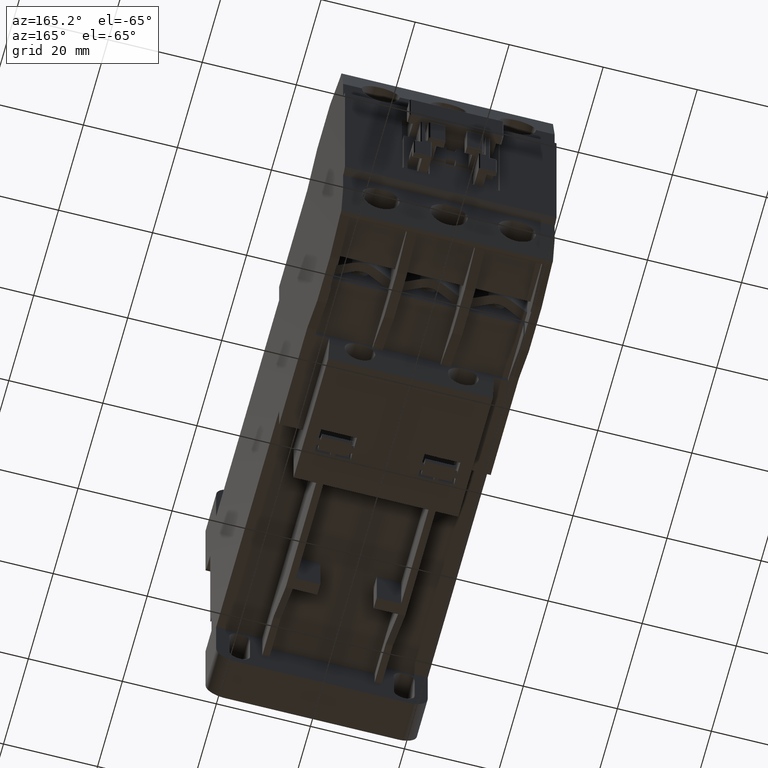
[diagram: clean part render]
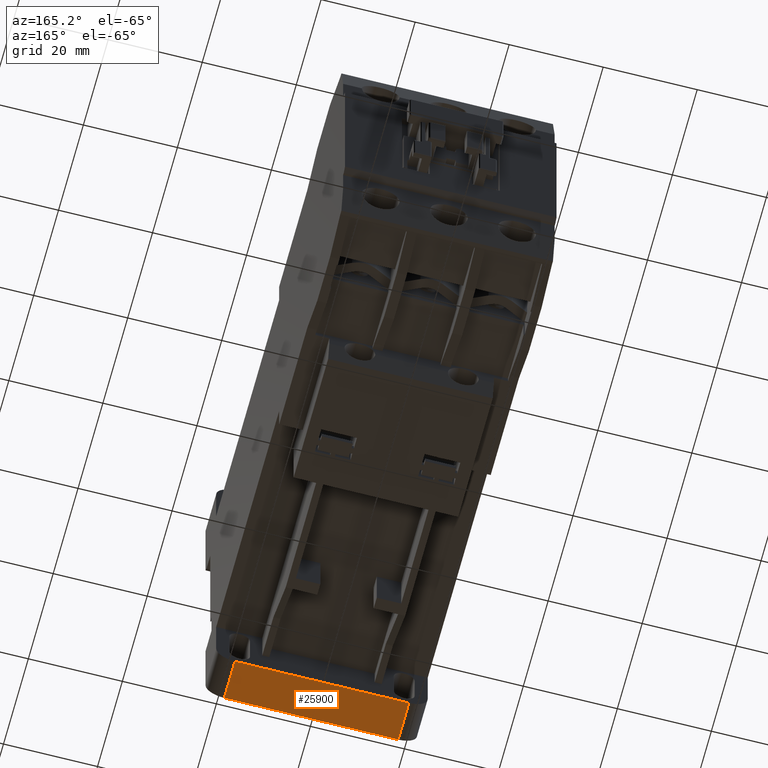
[diagram: same view with one face highlighted and labeled with its STEP entity id]
A machine part, auxiliary view. The second image highlights one B-rep face of the part: STEP entity #25900.
In plain terms, the highlighted planar face has unit normal (0, 0, -1).
Its self-contained STEP definition (entity closure, byte-faithful):
#37 = EDGE_CURVE ( 'NONE', #1266, #16179, #17452, .T. ) ;
#1137 = VERTEX_POINT ( 'NONE', #9874 ) ;
#1266 = VERTEX_POINT ( 'NONE', #24289 ) ;
#3537 = DIRECTION ( 'NONE',  ( 1.000000000000000000, 0.000000000000000000, 0.000000000000000000 ) ) ;
#4366 = VERTEX_POINT ( 'NONE', #32914 ) ;
#5297 = ORIENTED_EDGE ( 'NONE', *, *, #24615, .T. ) ;
#5742 = LINE ( 'NONE', #9022, #33638 ) ;
#8783 = VECTOR ( 'NONE', #10876, 39.37007874015748143 ) ;
#9022 = CARTESIAN_POINT ( 'NONE',  ( 0.7283464566929134243, -3.122047244094487972, -1.633858267716535639 ) ) ;
#9874 = CARTESIAN_POINT ( 'NONE',  ( -0.7283464566929134243, -3.122047244094487972, -1.633858267716535639 ) ) ;
#10797 = EDGE_LOOP ( 'NONE', ( #14265, #16472, #16333, #5297 ) ) ;
#10876 = DIRECTION ( 'NONE',  ( 0.000000000000000000, 1.000000000000000000, 0.000000000000000000 ) ) ;
#12020 = PLANE ( 'NONE',  #20422 ) ;
#12255 = CARTESIAN_POINT ( 'NONE',  ( 0.7283464566929134243, -2.783464566929133799, -1.633858267716535639 ) ) ;
#14265 = ORIENTED_EDGE ( 'NONE', *, *, #14660, .F. ) ;
#14660 = EDGE_CURVE ( 'NONE', #1137, #4366, #28438, .T. ) ;
#16179 = VERTEX_POINT ( 'NONE', #12255 ) ;
#16333 = ORIENTED_EDGE ( 'NONE', *, *, #37, .T. ) ;
#16472 = ORIENTED_EDGE ( 'NONE', *, *, #24131, .T. ) ;
#17151 = DIRECTION ( 'NONE',  ( 0.000000000000000000, -1.000000000000000000, 0.000000000000000000 ) ) ;
#17177 = VECTOR ( 'NONE', #19997, 39.37007874015748143 ) ;
#17452 = LINE ( 'NONE', #34237, #28428 ) ;
#19590 = DIRECTION ( 'NONE',  ( 0.000000000000000000, -1.000000000000000000, 0.000000000000000000 ) ) ;
#19997 = DIRECTION ( 'NONE',  ( 1.000000000000000000, 0.000000000000000000, 0.000000000000000000 ) ) ;
#20422 = AXIS2_PLACEMENT_3D ( 'NONE', #33316, #33857, #19590 ) ;
#22304 = FACE_OUTER_BOUND ( 'NONE', #10797, .T. ) ;
#24131 = EDGE_CURVE ( 'NONE', #1137, #1266, #29638, .T. ) ;
#24289 = CARTESIAN_POINT ( 'NONE',  ( -0.7283464566929134243, -2.783464566929133799, -1.633858267716535639 ) ) ;
#24586 = CARTESIAN_POINT ( 'NONE',  ( -0.7283464566929134243, -2.783464566929133799, -1.633858267716535639 ) ) ;
#24615 = EDGE_CURVE ( 'NONE', #16179, #4366, #5742, .T. ) ;
#25900 = ADVANCED_FACE ( 'NONE', ( #22304 ), #12020, .T. ) ;
#28428 = VECTOR ( 'NONE', #3537, 39.37007874015748143 ) ;
#28438 = LINE ( 'NONE', #34419, #17177 ) ;
#29638 = LINE ( 'NONE', #24586, #8783 ) ;
#32914 = CARTESIAN_POINT ( 'NONE',  ( 0.7283464566929134243, -3.122047244094487972, -1.633858267716535639 ) ) ;
#33316 = CARTESIAN_POINT ( 'NONE',  ( -0.8858267716535432879, -3.122047244094487972, -1.633858267716535639 ) ) ;
#33638 = VECTOR ( 'NONE', #17151, 39.37007874015748143 ) ;
#33857 = DIRECTION ( 'NONE',  ( 0.000000000000000000, 0.000000000000000000, -1.000000000000000000 ) ) ;
#34237 = CARTESIAN_POINT ( 'NONE',  ( -0.8858267716535432879, -2.783464566929133799, -1.633858267716535639 ) ) ;
#34419 = CARTESIAN_POINT ( 'NONE',  ( -0.8858267716535432879, -3.122047244094487972, -1.633858267716535639 ) ) ;